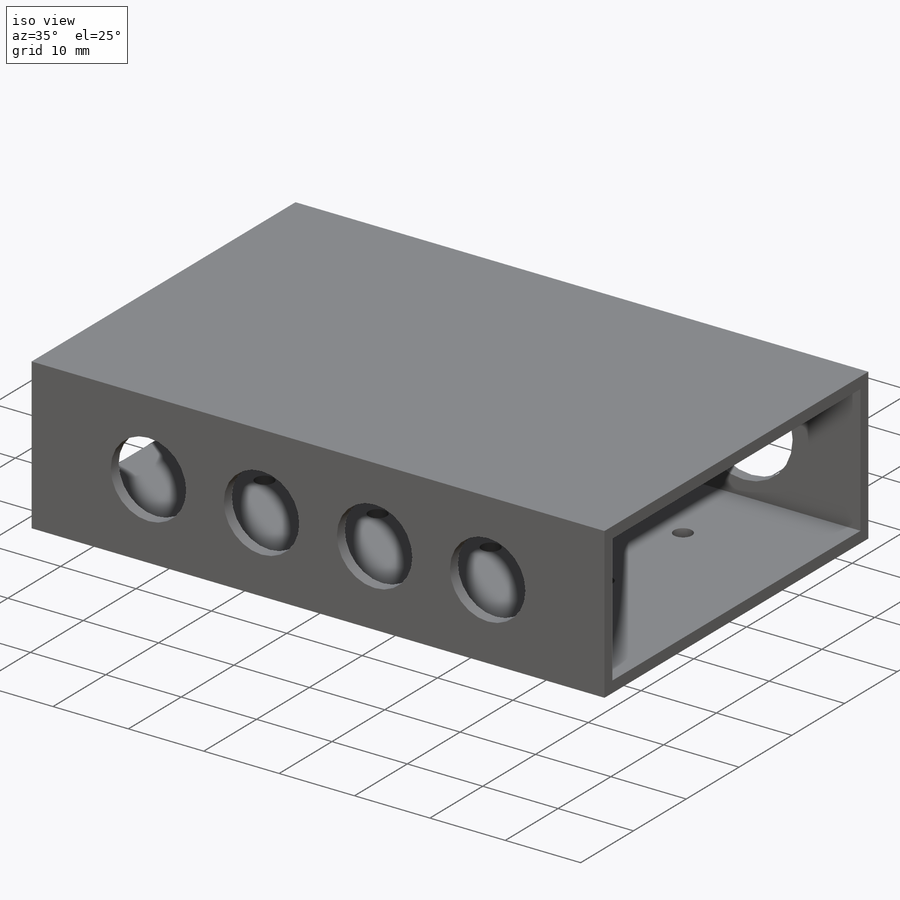
[diagram: iso view]
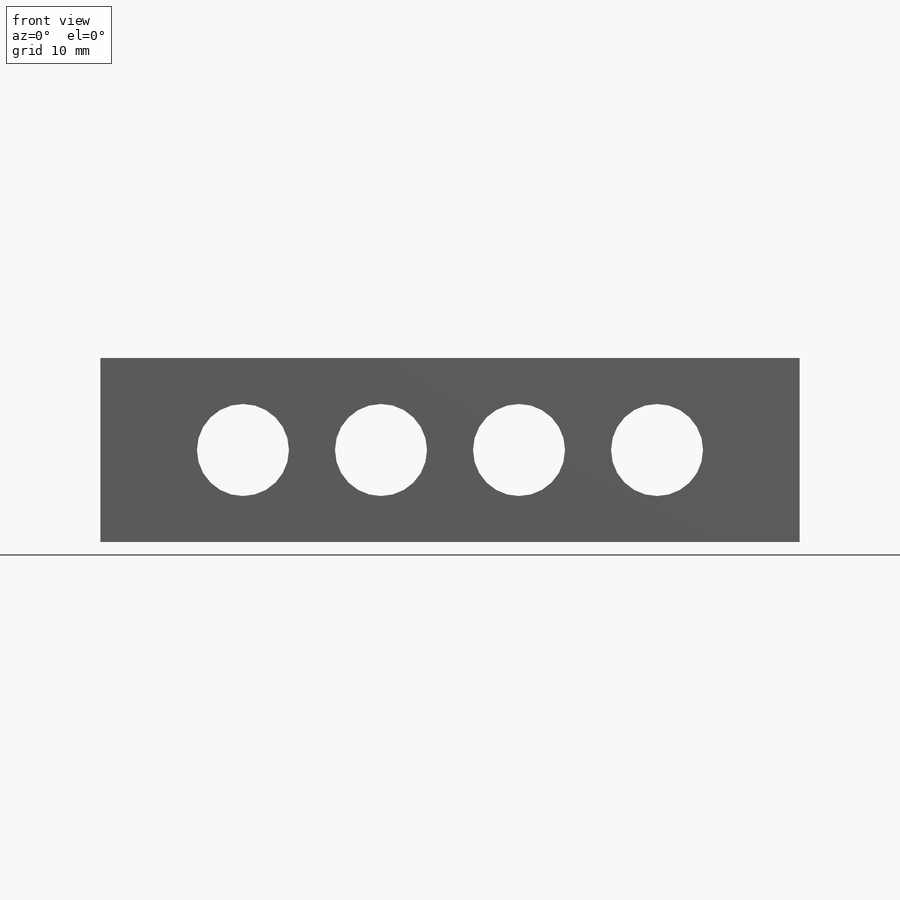
[diagram: front view]
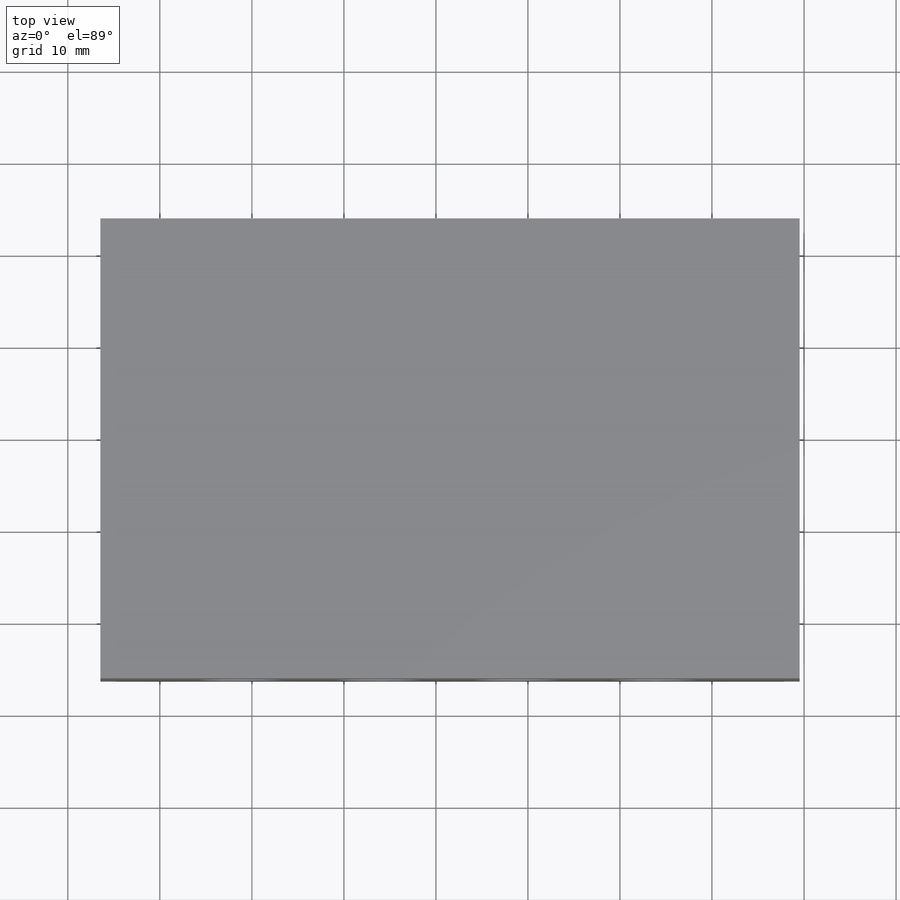
[diagram: top view]
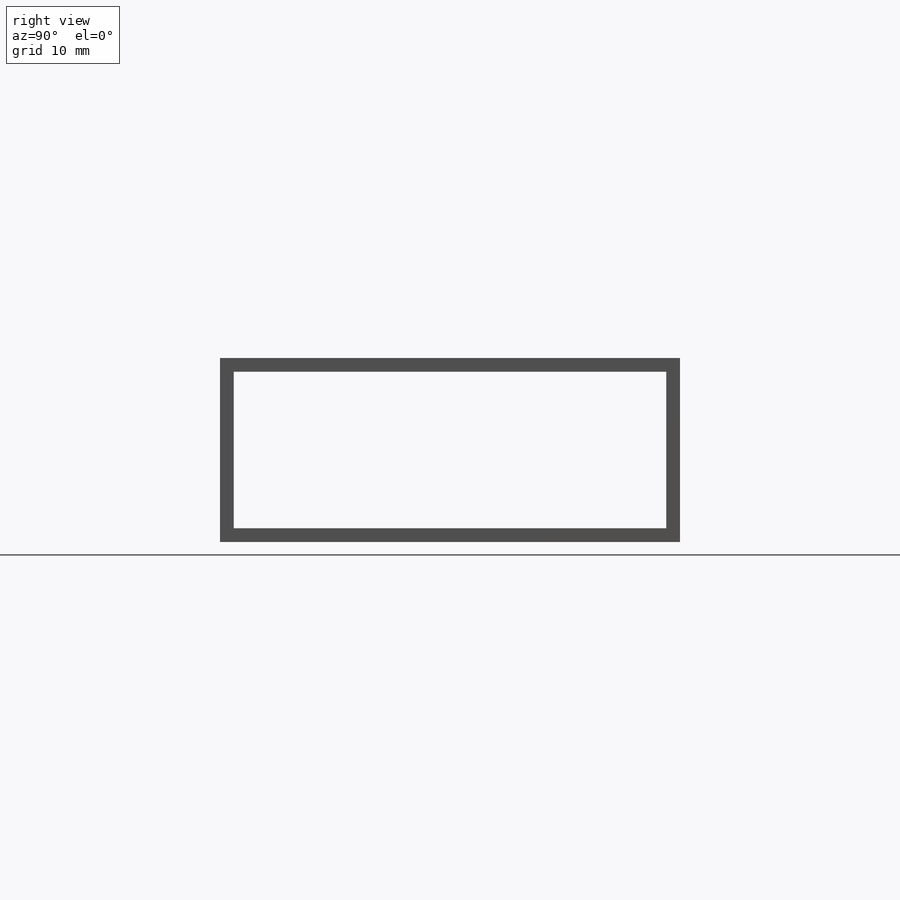
[diagram: right view]
SOLIDWORKS PART (.sldprt)
format: sldprt  version: not decoded by parser v0  size: 231,936 bytes
history: native  units: mm
features: sketch x5, cut_extrude x4, material x1, extrude x1 (+12 scaffold rows collapsed)
feature tree (23):
  scaffold x12  (default folders/planes/origin — collapsed)
  material  "Material <not specified>"
  sketch  "Sketch1"  dims[D1=76.0mm D2=50.0mm]
  extrude  "Boss-Extrude1"  Depth=20mm
  sketch  "Sketch2"  dims[D1=1.5mm D2=1.5mm D3=1.5mm D4=1.5mm]
  cut_extrude  "Cut-Extrude1"  Depth=76mm
  sketch  "Sketch3"  dims[D1=15.5mm D2=10.0mm D3=4.0]
  cut_extrude  "Cut-Extrude2"  Depth=2mm
  sketch  "Sketch4"  dims[c1.D1=~7.533492mm c1.D3=10.0mm c2.D1=15.5mm c2.D2=10.0mm c2.D3=4.0]
  cut_extrude  "Cut-Extrude3"  Depth=2mm
  sketch  "Sketch5"  dims[c1.D1=13.0mm c1.D2=~18.808047mm c2.D2=90.0deg c3.D2=15.5mm c3.D3=4.0 c3.D4=2.0]
  cut_extrude  "Cut-Extrude4"  Depth=2mm
decode coverage: 10 of 10 modeling features carry decoded parameters
note: ~ marks probable driven/reference dimensions
note: suppression state not decoded; provenance and decode notes live in map.json
